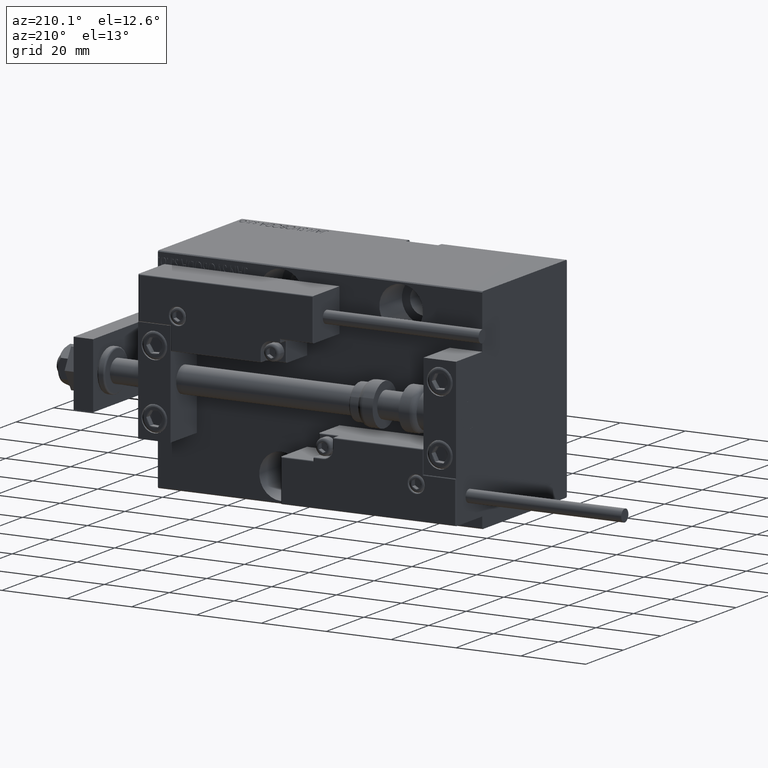
[diagram: clean part render]
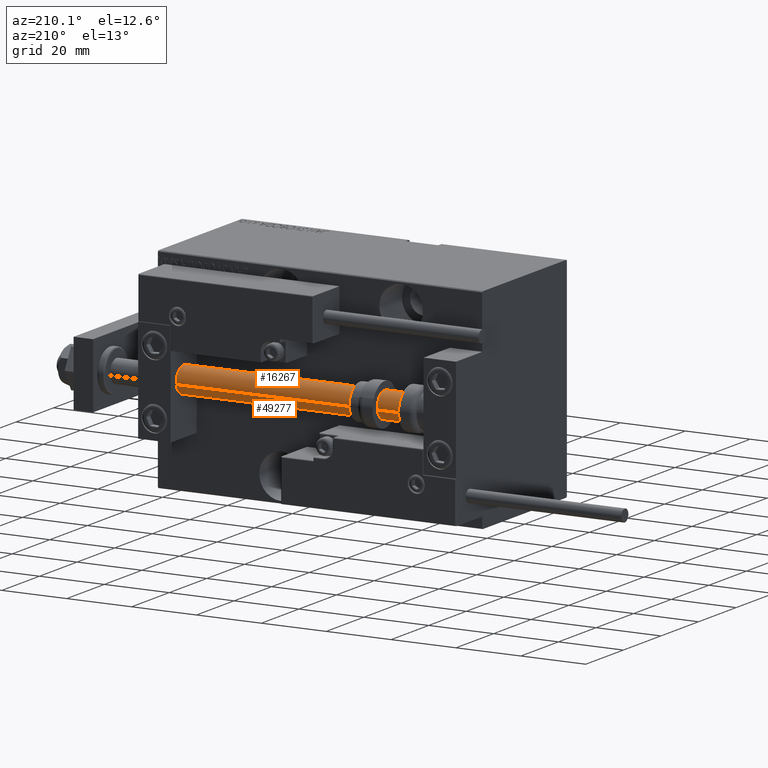
[diagram: same view with one multi-face feature highlighted, each face labeled with its STEP entity id]
A machine part, auxiliary view. The highlighted faces form ONE feature: a constant-radius fillet chain: 2 tangent blend faces with common blend radius 4 mm. The faces share edges in the B-rep.
Their STEP definitions:
[1] entity #16267 (Cylinder):
#2604 = ORIENTED_EDGE ( 'NONE', *, *, #31192, .F. ) ;
#2939 = DIRECTION ( 'NONE',  ( -0.000000000000000000, -0.000000000000000000, -1.000000000000000000 ) ) ;
#3183 = LINE ( 'NONE', #14288, #31809 ) ;
#4719 = VERTEX_POINT ( 'NONE', #23735 ) ;
#6038 = EDGE_CURVE ( 'NONE', #4719, #24472, #12970, .T. ) ;
#6280 = EDGE_LOOP ( 'NONE', ( #2604, #42171, #48743, #12009 ) ) ;
#7716 = CARTESIAN_POINT ( 'NONE',  ( -4.000000000000000000, 0.000000000000000000, 2.000000000000029310 ) ) ;
#10055 = CARTESIAN_POINT ( 'NONE',  ( 0.000000000000000000, 0.000000000000000000, 100.0000000000000000 ) ) ;
#12009 = ORIENTED_EDGE ( 'NONE', *, *, #14711, .T. ) ;
#12970 = CIRCLE ( 'NONE', #40386, 4.000000000000000000 ) ;
#13596 = DIRECTION ( 'NONE',  ( 0.000000000000000000, 0.000000000000000000, 1.000000000000000000 ) ) ;
#14288 = CARTESIAN_POINT ( 'NONE',  ( 4.000000000000000000, 4.898587196589412829E-16, 100.0000000000000000 ) ) ;
#14711 = EDGE_CURVE ( 'NONE', #18558, #34766, #38499, .T. ) ;
#15387 = CARTESIAN_POINT ( 'NONE',  ( 4.000000000000000000, 4.898587196589412829E-16, 2.000000000000029310 ) ) ;
#16267 = ADVANCED_FACE ( 'NONE', ( #16450 ), #20487, .T. ) ;
#16377 = DIRECTION ( 'NONE',  ( -0.000000000000000000, -0.000000000000000000, 1.000000000000000000 ) ) ;
#16450 = FACE_OUTER_BOUND ( 'NONE', #6280, .T. ) ;
#16960 = DIRECTION ( 'NONE',  ( -1.000000000000000000, 0.000000000000000000, 0.000000000000000000 ) ) ;
#17204 = DIRECTION ( 'NONE',  ( -0.000000000000000000, -0.000000000000000000, -1.000000000000000000 ) ) ;
#17378 = DIRECTION ( 'NONE',  ( 1.000000000000000000, 0.000000000000000000, 0.000000000000000000 ) ) ;
#18386 = AXIS2_PLACEMENT_3D ( 'NONE', #43198, #17204, #16960 ) ;
#18558 = VERTEX_POINT ( 'NONE', #7716 ) ;
#19090 = CARTESIAN_POINT ( 'NONE',  ( -4.000000000000000000, 0.000000000000000000, 100.0000000000000000 ) ) ;
#20487 = CYLINDRICAL_SURFACE ( 'NONE', #18386, 4.000000000000000000 ) ;
#23573 = EDGE_CURVE ( 'NONE', #4719, #18558, #39007, .T. ) ;
#23735 = CARTESIAN_POINT ( 'NONE',  ( -4.000000000000000000, 0.000000000000000000, 100.0000000000000000 ) ) ;
#24472 = VERTEX_POINT ( 'NONE', #43524 ) ;
#28722 = DIRECTION ( 'NONE',  ( 1.000000000000000000, 0.000000000000000000, 0.000000000000000000 ) ) ;
#30914 = DIRECTION ( 'NONE',  ( -0.000000000000000000, -0.000000000000000000, -1.000000000000000000 ) ) ;
#31192 = EDGE_CURVE ( 'NONE', #24472, #34766, #3183, .T. ) ;
#31809 = VECTOR ( 'NONE', #2939, 1000.000000000000000 ) ;
#34766 = VERTEX_POINT ( 'NONE', #15387 ) ;
#38499 = CIRCLE ( 'NONE', #46518, 4.000000000000000000 ) ;
#39007 = LINE ( 'NONE', #19090, #48570 ) ;
#40386 = AXIS2_PLACEMENT_3D ( 'NONE', #10055, #13596, #28722 ) ;
#42171 = ORIENTED_EDGE ( 'NONE', *, *, #6038, .F. ) ;
#43198 = CARTESIAN_POINT ( 'NONE',  ( 0.000000000000000000, 0.000000000000000000, 100.0000000000000000 ) ) ;
#43385 = CARTESIAN_POINT ( 'NONE',  ( 0.000000000000000000, 0.000000000000000000, 2.000000000000029310 ) ) ;
#43524 = CARTESIAN_POINT ( 'NONE',  ( 4.000000000000000000, 4.898587196589412829E-16, 100.0000000000000000 ) ) ;
#46518 = AXIS2_PLACEMENT_3D ( 'NONE', #43385, #16377, #17378 ) ;
#48570 = VECTOR ( 'NONE', #30914, 1000.000000000000000 ) ;
#48743 = ORIENTED_EDGE ( 'NONE', *, *, #23573, .T. ) ;
[2] entity #49277 (Cylinder):
#2939 = DIRECTION ( 'NONE',  ( -0.000000000000000000, -0.000000000000000000, -1.000000000000000000 ) ) ;
#3183 = LINE ( 'NONE', #14288, #31809 ) ;
#4012 = CARTESIAN_POINT ( 'NONE',  ( 0.000000000000000000, 0.000000000000000000, 100.0000000000000000 ) ) ;
#4719 = VERTEX_POINT ( 'NONE', #23735 ) ;
#5095 = EDGE_CURVE ( 'NONE', #24472, #4719, #48400, .T. ) ;
#7716 = CARTESIAN_POINT ( 'NONE',  ( -4.000000000000000000, 0.000000000000000000, 2.000000000000029310 ) ) ;
#8722 = EDGE_LOOP ( 'NONE', ( #19598, #26333, #22284, #40658 ) ) ;
#9492 = DIRECTION ( 'NONE',  ( -1.000000000000000000, 0.000000000000000000, 0.000000000000000000 ) ) ;
#10033 = CIRCLE ( 'NONE', #24506, 4.000000000000000000 ) ;
#12518 = CYLINDRICAL_SURFACE ( 'NONE', #22587, 4.000000000000000000 ) ;
#14288 = CARTESIAN_POINT ( 'NONE',  ( 4.000000000000000000, 4.898587196589412829E-16, 100.0000000000000000 ) ) ;
#15387 = CARTESIAN_POINT ( 'NONE',  ( 4.000000000000000000, 4.898587196589412829E-16, 2.000000000000029310 ) ) ;
#15891 = DIRECTION ( 'NONE',  ( 1.000000000000000000, 0.000000000000000000, 0.000000000000000000 ) ) ;
#16110 = DIRECTION ( 'NONE',  ( 0.000000000000000000, 0.000000000000000000, 1.000000000000000000 ) ) ;
#16563 = CARTESIAN_POINT ( 'NONE',  ( 0.000000000000000000, 0.000000000000000000, 100.0000000000000000 ) ) ;
#18558 = VERTEX_POINT ( 'NONE', #7716 ) ;
#19090 = CARTESIAN_POINT ( 'NONE',  ( -4.000000000000000000, 0.000000000000000000, 100.0000000000000000 ) ) ;
#19598 = ORIENTED_EDGE ( 'NONE', *, *, #5095, .F. ) ;
#19676 = DIRECTION ( 'NONE',  ( -0.000000000000000000, -0.000000000000000000, 1.000000000000000000 ) ) ;
#22284 = ORIENTED_EDGE ( 'NONE', *, *, #30726, .T. ) ;
#22587 = AXIS2_PLACEMENT_3D ( 'NONE', #16563, #32197, #9492 ) ;
#23176 = DIRECTION ( 'NONE',  ( 1.000000000000000000, 0.000000000000000000, 0.000000000000000000 ) ) ;
#23573 = EDGE_CURVE ( 'NONE', #4719, #18558, #39007, .T. ) ;
#23735 = CARTESIAN_POINT ( 'NONE',  ( -4.000000000000000000, 0.000000000000000000, 100.0000000000000000 ) ) ;
#24375 = FACE_OUTER_BOUND ( 'NONE', #8722, .T. ) ;
#24472 = VERTEX_POINT ( 'NONE', #43524 ) ;
#24506 = AXIS2_PLACEMENT_3D ( 'NONE', #42884, #19676, #15891 ) ;
#26333 = ORIENTED_EDGE ( 'NONE', *, *, #31192, .T. ) ;
#30726 = EDGE_CURVE ( 'NONE', #34766, #18558, #10033, .T. ) ;
#30914 = DIRECTION ( 'NONE',  ( -0.000000000000000000, -0.000000000000000000, -1.000000000000000000 ) ) ;
#31192 = EDGE_CURVE ( 'NONE', #24472, #34766, #3183, .T. ) ;
#31809 = VECTOR ( 'NONE', #2939, 1000.000000000000000 ) ;
#32197 = DIRECTION ( 'NONE',  ( -0.000000000000000000, -0.000000000000000000, -1.000000000000000000 ) ) ;
#34766 = VERTEX_POINT ( 'NONE', #15387 ) ;
#39007 = LINE ( 'NONE', #19090, #48570 ) ;
#40658 = ORIENTED_EDGE ( 'NONE', *, *, #23573, .F. ) ;
#42884 = CARTESIAN_POINT ( 'NONE',  ( 0.000000000000000000, 0.000000000000000000, 2.000000000000029310 ) ) ;
#43524 = CARTESIAN_POINT ( 'NONE',  ( 4.000000000000000000, 4.898587196589412829E-16, 100.0000000000000000 ) ) ;
#44389 = AXIS2_PLACEMENT_3D ( 'NONE', #4012, #16110, #23176 ) ;
#48400 = CIRCLE ( 'NONE', #44389, 4.000000000000000000 ) ;
#48570 = VECTOR ( 'NONE', #30914, 1000.000000000000000 ) ;
#49277 = ADVANCED_FACE ( 'NONE', ( #24375 ), #12518, .T. ) ;